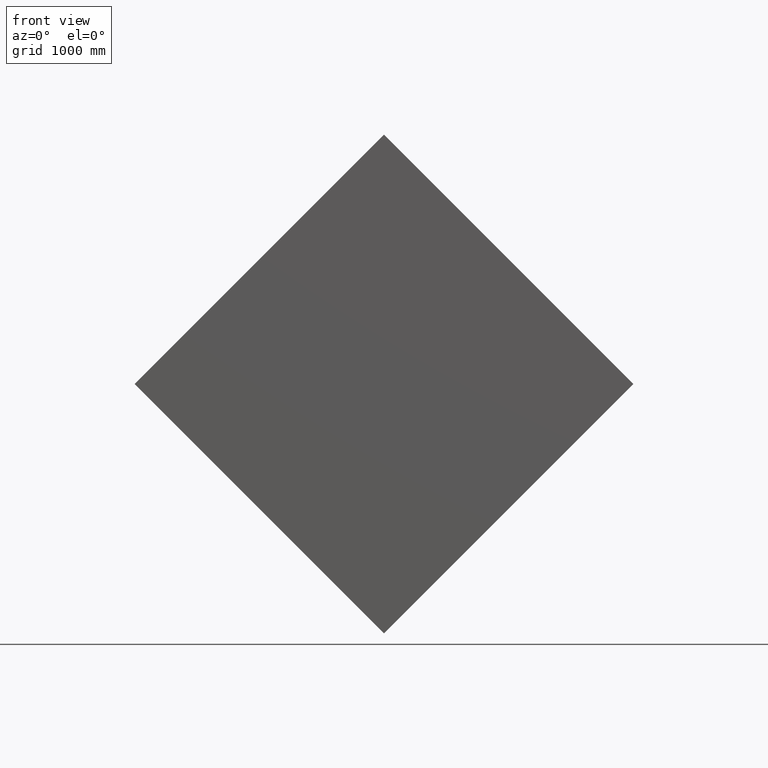
[diagram: clean part render]
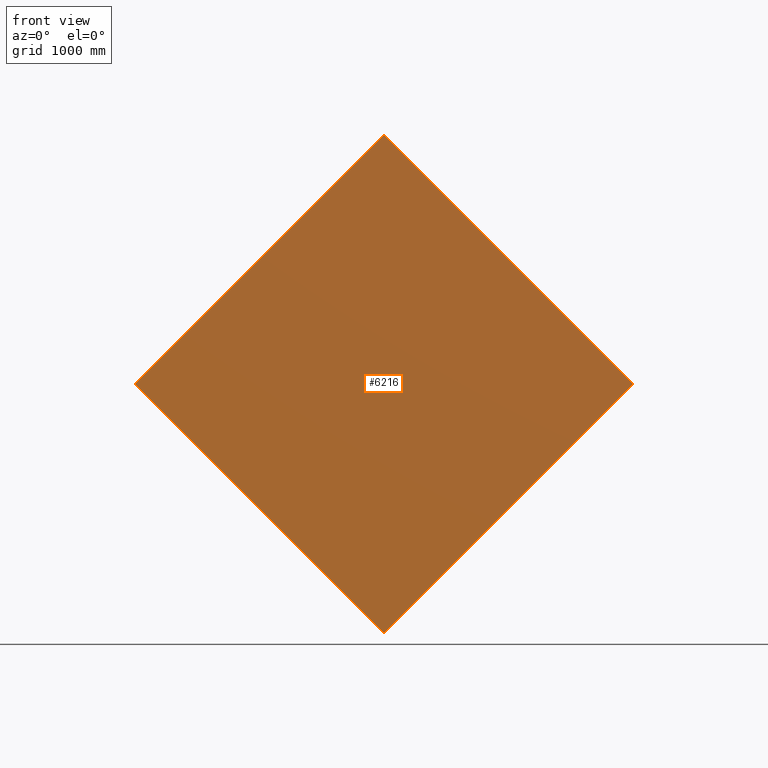
[diagram: same view with one face highlighted and labeled with its STEP entity id]
A machine part, front view. The second image highlights one B-rep face of the part: STEP entity #6216.
In plain terms, the highlighted planar face has unit normal (0, 1, 0).
Its self-contained STEP definition (entity closure, byte-faithful):
#614 = DIRECTION ( 'NONE',  ( 0.0000000000000000000, 0.0000000000000000000, 1.000000000000000000 ) ) ;
#1070 = PLANE ( 'NONE',  #1903 ) ;
#1540 = CARTESIAN_POINT ( 'NONE',  ( 0.0000000000000000000, 0.0000000000000000000, 2650.000000000000500 ) ) ;
#1859 = EDGE_CURVE ( 'NONE', #4691, #4691, #2474, .T. ) ;
#1903 = AXIS2_PLACEMENT_3D ( 'NONE', #5001, #5625, #2605 ) ;
#2381 = EDGE_LOOP ( 'NONE', ( #6418 ) ) ;
#2474 = CIRCLE ( 'NONE', #3207, 2650.000000000000500 ) ;
#2605 = DIRECTION ( 'NONE',  ( 0.0000000000000000000, -0.0000000000000000000, 1.000000000000000000 ) ) ;
#3207 = AXIS2_PLACEMENT_3D ( 'NONE', #5664, #6179, #614 ) ;
#4691 = VERTEX_POINT ( 'NONE', #1540 ) ;
#5001 = CARTESIAN_POINT ( 'NONE',  ( 0.0000000000000000000, 0.0000000000000000000, 0.0000000000000000000 ) ) ;
#5467 = FACE_OUTER_BOUND ( 'NONE', #2381, .T. ) ;
#5625 = DIRECTION ( 'NONE',  ( 0.0000000000000000000, 1.000000000000000000, 0.0000000000000000000 ) ) ;
#5664 = CARTESIAN_POINT ( 'NONE',  ( 0.0000000000000000000, 0.0000000000000000000, 0.0000000000000000000 ) ) ;
#6179 = DIRECTION ( 'NONE',  ( 0.0000000000000000000, 1.000000000000000000, 0.0000000000000000000 ) ) ;
#6216 = ADVANCED_FACE ( 'NONE', ( #5467 ), #1070, .F. ) ;
#6418 = ORIENTED_EDGE ( 'NONE', *, *, #1859, .F. ) ;